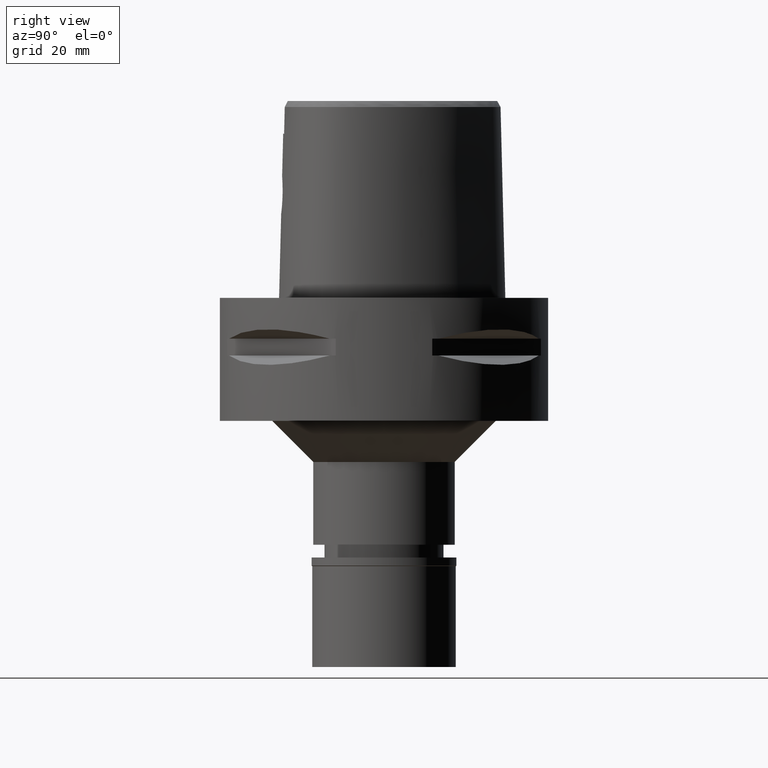
[diagram: clean part render]
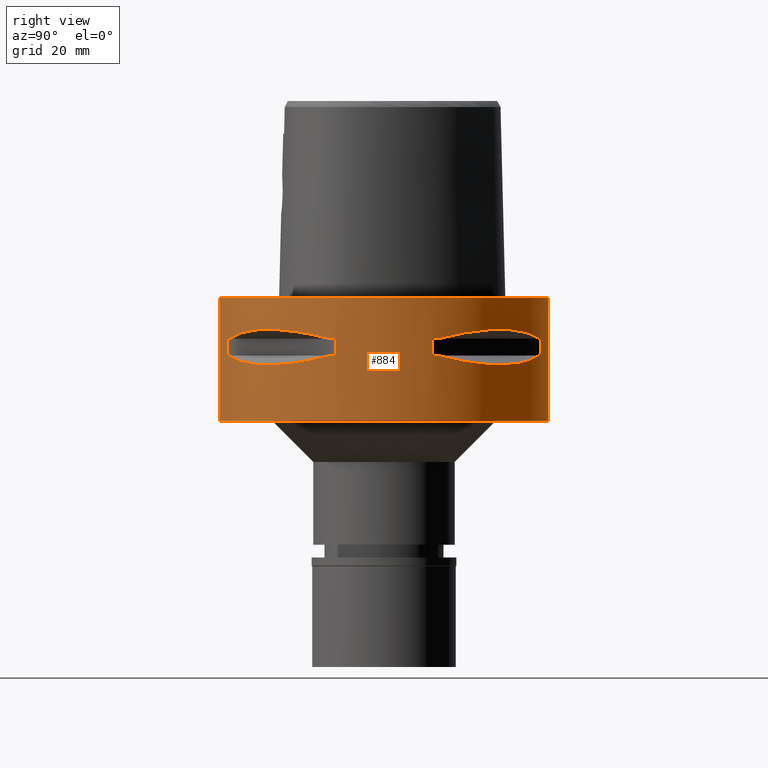
[diagram: same view with one face highlighted and labeled with its STEP entity id]
A machine part, right view. The second image highlights one B-rep face of the part: STEP entity #884.
In plain terms, the highlighted cylindrical surface (partial cylindrical patch) has radius 40 mm, axis along (0, 0, -1).
Its self-contained STEP definition (entity closure, byte-faithful):
#3 = CARTESIAN_POINT ( 'NONE',  ( 34.44518065740276569, 20.34261333234974245, -15.60313948593977074 ) ) ;
#21 = DIRECTION ( 'NONE',  ( 0.0000000000000000000, 0.0000000000000000000, 1.000000000000000000 ) ) ;
#29 = CARTESIAN_POINT ( 'NONE',  ( 30.36058330527161075, 26.20795918965221460, -7.669882118573493557 ) ) ;
#55 = EDGE_CURVE ( 'NONE', #2359, #2153, #1997, .T. ) ;
#78 = EDGE_CURVE ( 'NONE', #804, #5030, #3390, .T. ) ;
#102 = CARTESIAN_POINT ( 'NONE',  ( 23.95303639238279914, -32.16767032370825063, -16.14729882780506287 ) ) ;
#111 = CARTESIAN_POINT ( 'NONE',  ( 13.23717311056000057, -37.74622163926999718, -9.950000000002001244 ) ) ;
#113 = LINE ( 'NONE', #2866, #3397 ) ;
#140 = CARTESIAN_POINT ( 'NONE',  ( 30.36058330527161075, -26.20795918965218618, -7.669863843587146235 ) ) ;
#156 = CARTESIAN_POINT ( 'NONE',  ( 21.44484052678270913, -33.76566745675011560, -15.77571175125575031 ) ) ;
#172 = CARTESIAN_POINT ( 'NONE',  ( 38.23211342708000160, -11.76033600280999991, -14.05000000000000071 ) ) ;
#205 = VECTOR ( 'NONE', #3379, 1000.000000000000000 ) ;
#206 = CARTESIAN_POINT ( 'NONE',  ( 0.0000000000000000000, 1.273020347714000000E-14, -9.950000000000001066 ) ) ;
#209 = VECTOR ( 'NONE', #1115, 1000.000000000000000 ) ;
#229 = LINE ( 'NONE', #1390, #823 ) ;
#267 = VERTEX_POINT ( 'NONE', #3043 ) ;
#277 = CARTESIAN_POINT ( 'NONE',  ( 37.74622163926999718, -13.23717311056000057, -14.05000000000000071 ) ) ;
#305 = CARTESIAN_POINT ( 'NONE',  ( 32.16767032371209467, 23.95303639237203797, -16.14729882780224202 ) ) ;
#326 = CARTESIAN_POINT ( 'NONE',  ( 21.75464223249287699, 33.56701934068274795, -15.82109001420633732 ) ) ;
#333 = CARTESIAN_POINT ( 'NONE',  ( 38.23211342708000160, -11.76033600280999991, -9.950000000000001066 ) ) ;
#353 = CARTESIAN_POINT ( 'NONE',  ( 27.25214773984120598, 29.31642813391417590, -16.33014064577303515 ) ) ;
#369 = DIRECTION ( 'NONE',  ( 0.0000000000000000000, -1.000000000000000000, 0.0000000000000000000 ) ) ;
#398 = EDGE_LOOP ( 'NONE', ( #3161, #532, #684, #4283, #4489, #672, #1204, #1651 ) ) ;
#402 = CARTESIAN_POINT ( 'NONE',  ( 21.50560509406274434, 33.72697758561020720, -15.78472370821746118 ) ) ;
#419 = CYLINDRICAL_SURFACE ( 'NONE', #941, 40.00000000000000000 ) ;
#423 = CARTESIAN_POINT ( 'NONE',  ( 0.0000000000000000000, 1.273020347714000000E-14, -14.05000000000000071 ) ) ;
#498 = CARTESIAN_POINT ( 'NONE',  ( 18.83182902076451626, 35.41591128513827869, -8.619912199391256635 ) ) ;
#532 = ORIENTED_EDGE ( 'NONE', *, *, #1632, .F. ) ;
#536 = DIRECTION ( 'NONE',  ( 0.3309293277639132058, -0.9436555409818374596, 0.0000000000000000000 ) ) ;
#537 = DIRECTION ( 'NONE',  ( 0.0000000000000000000, 0.0000000000000000000, 1.000000000000000000 ) ) ;
#550 = CARTESIAN_POINT ( 'NONE',  ( 20.91613153241887701, -34.09685321779939926, -15.69507322892818557 ) ) ;
#556 = DIRECTION ( 'NONE',  ( 0.0000000000000000000, 0.0000000000000000000, -1.000000000000000000 ) ) ;
#569 = CARTESIAN_POINT ( 'NONE',  ( 21.40429668490248005, -33.79139713908606524, -15.76966389594713647 ) ) ;
#585 = CARTESIAN_POINT ( 'NONE',  ( 0.0000000000000000000, -40.00000000000000000, 1.065814103639999922E-14 ) ) ;
#668 = DIRECTION ( 'NONE',  ( 0.0000000000000000000, 0.0000000000000000000, 1.000000000000000000 ) ) ;
#672 = ORIENTED_EDGE ( 'NONE', *, *, #2668, .F. ) ;
#678 = B_SPLINE_CURVE_WITH_KNOTS ( 'NONE', 3,
 ( #3595, #3980, #1274, #905, #2531, #550, #1318, #3315, #569, #156, #3242, #102, #3214, #963, #2511, #4050, #4802, #4391, #1301, #1682, #2860, #4468, #883, #2120, #1346, #3264 ),
 .UNSPECIFIED., .F., .F.,
 ( 4, 1, 1, 1, 1, 1, 1, 2, 2, 2, 1, 1, 1, 1, 1, 1, 2, 2, 4 ),
 ( 0.0000000000000000000, 0.1250000000000018319, 0.1875000000000027478, 0.2187500000000032196, 0.2343750000000035805, 0.2421875000000038025, 0.2460937500000040523, 0.2480468750000043576, 0.2500000000000046629, 0.5000000000000000000, 0.6249999999999975575, 0.6874999999999964473, 0.7187499999999961142, 0.7343749999999960032, 0.7421874999999960032, 0.7460937499999957812, 0.7480468749999958922, 0.7499999999999958922, 1.000000000000000000 ),
 .UNSPECIFIED. ) ;
#684 = ORIENTED_EDGE ( 'NONE', *, *, #2269, .T. ) ;
#688 = CARTESIAN_POINT ( 'NONE',  ( 13.23717311056000057, 37.74622163926999718, -14.05000000000000071 ) ) ;
#705 = FACE_OUTER_BOUND ( 'NONE', #4308, .T. ) ;
#759 = CARTESIAN_POINT ( 'NONE',  ( 37.74622163926999718, 13.23717311056000057, -9.950000000002001244 ) ) ;
#804 = VERTEX_POINT ( 'NONE', #4975 ) ;
#823 = VECTOR ( 'NONE', #668, 1000.000000000000000 ) ;
#827 = CARTESIAN_POINT ( 'NONE',  ( 0.0000000000000000000, 1.273020347714000000E-14, -9.950000000000001066 ) ) ;
#828 = VERTEX_POINT ( 'NONE', #4603 ) ;
#883 = CARTESIAN_POINT ( 'NONE',  ( 33.72697758561029246, -21.50560509406250276, -15.78472370821739901 ) ) ;
#884 = ADVANCED_FACE ( 'NONE', ( #705, #2305, #2684 ), #419, .T. ) ;
#905 = CARTESIAN_POINT ( 'NONE',  ( 19.18269457492549179, -35.11589783530871500, -15.40342377740917001 ) ) ;
#910 = VERTEX_POINT ( 'NONE', #3085 ) ;
#911 = AXIS2_PLACEMENT_3D ( 'NONE', #5039, #1491, #1562 ) ;
#919 = CARTESIAN_POINT ( 'NONE',  ( 18.83173199174709467, -35.41596287855377767, -8.619939612211808821 ) ) ;
#921 = DIRECTION ( 'NONE',  ( 0.0000000000000000000, -1.000000000000000000, 0.0000000000000000000 ) ) ;
#922 = CARTESIAN_POINT ( 'NONE',  ( 11.76033600280999991, -38.23211342708000160, -14.05000000000000071 ) ) ;
#941 = AXIS2_PLACEMENT_3D ( 'NONE', #1500, #3516, #369 ) ;
#949 = CARTESIAN_POINT ( 'NONE',  ( 0.0000000000000000000, 1.273020347714000000E-14, -14.05000000000000071 ) ) ;
#963 = CARTESIAN_POINT ( 'NONE',  ( 29.31642813390815050, -27.25214773984377459, -16.33014064577162472 ) ) ;
#982 = CARTESIAN_POINT ( 'NONE',  ( 36.74073341982096252, 16.10435486228974611, -9.189966798081966814 ) ) ;
#993 = ORIENTED_EDGE ( 'NONE', *, *, #3386, .T. ) ;
#1008 = CARTESIAN_POINT ( 'NONE',  ( 0.0000000000000000000, -40.00000000000000000, 0.0000000000000000000 ) ) ;
#1014 = ORIENTED_EDGE ( 'NONE', *, *, #2906, .F. ) ;
#1060 = DIRECTION ( 'NONE',  ( 0.0000000000000000000, 0.0000000000000000000, 1.000000000000000000 ) ) ;
#1104 = CARTESIAN_POINT ( 'NONE',  ( 21.52391145898924663, 33.71529052282357952, -15.78742602700012831 ) ) ;
#1107 = DIRECTION ( 'NONE',  ( 0.0000000000000000000, 0.0000000000000000000, -1.000000000000000000 ) ) ;
#1115 = DIRECTION ( 'NONE',  ( 0.0000000000000000000, 0.0000000000000000000, -1.000000000000000000 ) ) ;
#1154 = CARTESIAN_POINT ( 'NONE',  ( 21.62017158009700069, 33.65365962422837498, -15.80156334789098160 ) ) ;
#1173 = EDGE_CURVE ( 'NONE', #828, #4433, #3803, .T. ) ;
#1200 = CIRCLE ( 'NONE', #1851, 39.99999999999999289 ) ;
#1204 = ORIENTED_EDGE ( 'NONE', *, *, #78, .T. ) ;
#1227 = EDGE_LOOP ( 'NONE', ( #1425, #4377, #2439, #2764, #3624, #3374, #2147, #3907 ) ) ;
#1249 = CARTESIAN_POINT ( 'NONE',  ( 26.20795918965211158, 30.36058330527170668, -7.669863843587146235 ) ) ;
#1274 = CARTESIAN_POINT ( 'NONE',  ( 16.81132763099230587, -36.35358138589664634, -14.94059947014864775 ) ) ;
#1301 = CARTESIAN_POINT ( 'NONE',  ( 33.56701934068144766, -21.75464223249341345, -15.82109001420603533 ) ) ;
#1318 = CARTESIAN_POINT ( 'NONE',  ( 21.20128033779640830, -33.91944728533381692, -15.73905907260415837 ) ) ;
#1346 = CARTESIAN_POINT ( 'NONE',  ( 36.72682052669194519, -16.14402792113480345, -14.82054974553614635 ) ) ;
#1362 = VERTEX_POINT ( 'NONE', #3004 ) ;
#1390 = CARTESIAN_POINT ( 'NONE',  ( 11.76033600280999991, 38.23211342708000160, -14.05000000000000071 ) ) ;
#1391 = DIRECTION ( 'NONE',  ( 0.9558028356769561196, 0.2940084000702865574, 0.0000000000000000000 ) ) ;
#1397 = VERTEX_POINT ( 'NONE', #4516 ) ;
#1425 = ORIENTED_EDGE ( 'NONE', *, *, #4392, .T. ) ;
#1488 = CARTESIAN_POINT ( 'NONE',  ( 13.23717311056000057, -37.74622163926999718, -9.950000000002001244 ) ) ;
#1491 = DIRECTION ( 'NONE',  ( 0.0000000000000000000, 0.0000000000000000000, 1.000000000000000000 ) ) ;
#1500 = CARTESIAN_POINT ( 'NONE',  ( 0.0000000000000000000, 1.273020347714000000E-14, 3.950000000000000178 ) ) ;
#1510 = CARTESIAN_POINT ( 'NONE',  ( 21.56243030661663695, 33.69065616467183588, -15.79309434609252705 ) ) ;
#1515 = AXIS2_PLACEMENT_3D ( 'NONE', #949, #2793, #536 ) ;
#1556 = CARTESIAN_POINT ( 'NONE',  ( 33.91944728533341191, 21.20128033779756294, -15.73905907260447101 ) ) ;
#1562 = DIRECTION ( 'NONE',  ( 0.3309293277639132058, 0.9436555409818374596, 0.0000000000000000000 ) ) ;
#1582 = CARTESIAN_POINT ( 'NONE',  ( 23.60097336453497618, 32.30995221951452834, -16.06165603927751917 ) ) ;
#1597 = VECTOR ( 'NONE', #1107, 1000.000000000000000 ) ;
#1616 = CARTESIAN_POINT ( 'NONE',  ( 11.76033600280999991, 38.23211342708000160, -9.950000000000001066 ) ) ;
#1629 = DIRECTION ( 'NONE',  ( 0.9558028356769561196, -0.2940084000702865574, 0.0000000000000000000 ) ) ;
#1632 = EDGE_CURVE ( 'NONE', #1397, #4433, #4131, .T. ) ;
#1649 = CIRCLE ( 'NONE', #2712, 39.99999999999997868 ) ;
#1651 = ORIENTED_EDGE ( 'NONE', *, *, #2772, .T. ) ;
#1682 = CARTESIAN_POINT ( 'NONE',  ( 33.65365962422774260, -21.62017158009728135, -15.80156334789082528 ) ) ;
#1715 = CARTESIAN_POINT ( 'NONE',  ( 37.74622163926999718, -13.23717311056000057, -9.950000000002001244 ) ) ;
#1758 = EDGE_CURVE ( 'NONE', #267, #2153, #3310, .T. ) ;
#1825 = LINE ( 'NONE', #1008, #209 ) ;
#1840 = B_SPLINE_CURVE_WITH_KNOTS ( 'NONE', 3,
 ( #1488, #1897, #919, #2469, #3199, #140, #4812, #2846, #3582, #1715 ),
 .UNSPECIFIED., .F., .F.,
 ( 4, 2, 2, 2, 4 ),
 ( 0.0000000000000000000, 0.2500000000000000000, 0.5000000000000000000, 0.7500000000000000000, 1.000000000000000000 ),
 .UNSPECIFIED. ) ;
#1851 = AXIS2_PLACEMENT_3D ( 'NONE', #423, #2786, #1629 ) ;
#1868 = CARTESIAN_POINT ( 'NONE',  ( 34.09685321779860345, 20.91613153242115075, -15.69507322892878953 ) ) ;
#1888 = VERTEX_POINT ( 'NONE', #4615 ) ;
#1897 = CARTESIAN_POINT ( 'NONE',  ( 16.10435486228985980, -36.74073341982089147, -9.189966798081966814 ) ) ;
#1918 = CARTESIAN_POINT ( 'NONE',  ( 37.74622163926999718, 13.23717311056000057, -14.05000000000000071 ) ) ;
#1938 = CARTESIAN_POINT ( 'NONE',  ( 0.0000000000000000000, -40.00000000000000000, -30.00000000000000000 ) ) ;
#1966 = CARTESIAN_POINT ( 'NONE',  ( 16.14402792110260521, 36.72682052670324993, -14.82054974552761095 ) ) ;
#1997 = CIRCLE ( 'NONE', #2335, 39.99999999999999289 ) ;
#2008 = DIRECTION ( 'NONE',  ( 0.9436555409818374596, -0.3309293277639132058, 0.0000000000000000000 ) ) ;
#2026 = VERTEX_POINT ( 'NONE', #1938 ) ;
#2057 = CIRCLE ( 'NONE', #3602, 40.00000000000000000 ) ;
#2117 = EDGE_CURVE ( 'NONE', #4690, #1888, #4694, .T. ) ;
#2120 = CARTESIAN_POINT ( 'NONE',  ( 35.39137327285502010, -18.89342208874845142, -15.39779115589221625 ) ) ;
#2147 = ORIENTED_EDGE ( 'NONE', *, *, #2385, .T. ) ;
#2153 = VERTEX_POINT ( 'NONE', #3596 ) ;
#2269 = EDGE_CURVE ( 'NONE', #1397, #4863, #1200, .T. ) ;
#2275 = CARTESIAN_POINT ( 'NONE',  ( 11.76033600280999991, 38.23211342708000160, -14.05000000000000071 ) ) ;
#2305 = FACE_BOUND ( 'NONE', #398, .T. ) ;
#2331 = CARTESIAN_POINT ( 'NONE',  ( 37.74622163926999718, 13.23717311056000057, -9.950000000002001244 ) ) ;
#2335 = AXIS2_PLACEMENT_3D ( 'NONE', #2835, #4339, #2455 ) ;
#2359 = VERTEX_POINT ( 'NONE', #2275 ) ;
#2385 = EDGE_CURVE ( 'NONE', #1362, #4690, #3569, .T. ) ;
#2439 = ORIENTED_EDGE ( 'NONE', *, *, #55, .T. ) ;
#2455 = DIRECTION ( 'NONE',  ( 0.2940084000702865574, 0.9558028356769561196, 0.0000000000000000000 ) ) ;
#2469 = CARTESIAN_POINT ( 'NONE',  ( 23.88355431037091137, -32.22577213857957901, -7.859897272571249260 ) ) ;
#2475 = EDGE_CURVE ( 'NONE', #2611, #2026, #1825, .T. ) ;
#2484 = DIRECTION ( 'NONE',  ( 0.2940084000702865574, -0.9558028356769561196, 0.0000000000000000000 ) ) ;
#2511 = CARTESIAN_POINT ( 'NONE',  ( 30.77249687753092289, -25.62819065487347814, -16.26160051742767365 ) ) ;
#2531 = CARTESIAN_POINT ( 'NONE',  ( 20.34261333234551472, -34.44518065740425783, -15.60313948593864275 ) ) ;
#2548 = CARTESIAN_POINT ( 'NONE',  ( 35.41596287855380609, 18.83173199174708046, -8.619939612211808821 ) ) ;
#2611 = VERTEX_POINT ( 'NONE', #585 ) ;
#2643 = CARTESIAN_POINT ( 'NONE',  ( 38.23211342708000160, 11.76033600280999991, -14.05000000000000071 ) ) ;
#2668 = EDGE_CURVE ( 'NONE', #804, #4526, #3530, .T. ) ;
#2669 = CARTESIAN_POINT ( 'NONE',  ( 18.89342208871625317, 35.39137327286631063, -15.39779115588368619 ) ) ;
#2684 = FACE_BOUND ( 'NONE', #1227, .T. ) ;
#2692 = CARTESIAN_POINT ( 'NONE',  ( 33.76566745675005166, 21.44484052678287256, -15.77571175125579828 ) ) ;
#2712 = AXIS2_PLACEMENT_3D ( 'NONE', #4867, #4485, #4159 ) ;
#2742 = CARTESIAN_POINT ( 'NONE',  ( 35.11589783530617126, 19.18269457493275354, -15.40342377741110091 ) ) ;
#2749 = DIRECTION ( 'NONE',  ( 0.0000000000000000000, 1.000000000000000000, 0.0000000000000000000 ) ) ;
#2764 = ORIENTED_EDGE ( 'NONE', *, *, #1758, .F. ) ;
#2772 = EDGE_CURVE ( 'NONE', #5030, #828, #1840, .T. ) ;
#2786 = DIRECTION ( 'NONE',  ( 0.0000000000000000000, 0.0000000000000000000, -1.000000000000000000 ) ) ;
#2793 = DIRECTION ( 'NONE',  ( 0.0000000000000000000, 0.0000000000000000000, -1.000000000000000000 ) ) ;
#2810 = CARTESIAN_POINT ( 'NONE',  ( 23.88364259920617272, 32.22570670470200582, -7.859869859750697962 ) ) ;
#2835 = CARTESIAN_POINT ( 'NONE',  ( 0.0000000000000000000, 1.273020347714000000E-14, -14.05000000000000071 ) ) ;
#2846 = CARTESIAN_POINT ( 'NONE',  ( 35.41591128513823605, -18.83182902076454468, -8.619912199391256635 ) ) ;
#2860 = CARTESIAN_POINT ( 'NONE',  ( 33.69065616467145929, -21.56243030661679327, -15.79309434609244001 ) ) ;
#2866 = CARTESIAN_POINT ( 'NONE',  ( 0.0000000000000000000, 40.00000000000000000, 0.0000000000000000000 ) ) ;
#2906 = EDGE_CURVE ( 'NONE', #4700, #3648, #113, .T. ) ;
#2922 = EDGE_CURVE ( 'NONE', #910, #4526, #3715, .T. ) ;
#2983 = AXIS2_PLACEMENT_3D ( 'NONE', #827, #3955, #2008 ) ;
#2990 = EDGE_CURVE ( 'NONE', #1362, #4873, #3250, .T. ) ;
#3004 = CARTESIAN_POINT ( 'NONE',  ( 38.23211342708000160, 11.76033600280999991, -9.950000000000001066 ) ) ;
#3043 = CARTESIAN_POINT ( 'NONE',  ( 37.74622163926999718, 13.23717311056000057, -14.05000000000000071 ) ) ;
#3072 = CARTESIAN_POINT ( 'NONE',  ( 11.76033600280999991, -38.23211342708000160, -9.950000000000001066 ) ) ;
#3085 = CARTESIAN_POINT ( 'NONE',  ( 13.23717311056000057, -37.74622163926999718, -14.05000000000000071 ) ) ;
#3116 = CARTESIAN_POINT ( 'NONE',  ( 0.0000000000000000000, 40.00000000000000000, 1.065814103639999922E-14 ) ) ;
#3118 = CARTESIAN_POINT ( 'NONE',  ( 33.79139713908593023, 21.40429668490282467, -15.76966389594722528 ) ) ;
#3147 = VECTOR ( 'NONE', #556, 1000.000000000000000 ) ;
#3161 = ORIENTED_EDGE ( 'NONE', *, *, #1173, .T. ) ;
#3189 = CARTESIAN_POINT ( 'NONE',  ( 16.10442380448735733, 36.74070924257181758, -9.189948522868267133 ) ) ;
#3199 = CARTESIAN_POINT ( 'NONE',  ( 26.20795918965211158, -30.36058330527167115, -7.669882118573493557 ) ) ;
#3214 = CARTESIAN_POINT ( 'NONE',  ( 26.21995747456629644, -30.34851826269509800, -16.33009976522055240 ) ) ;
#3242 = CARTESIAN_POINT ( 'NONE',  ( 21.46607685731536819, -33.75216276490051825, -15.77886817953059051 ) ) ;
#3250 = LINE ( 'NONE', #3556, #3147 ) ;
#3264 = CARTESIAN_POINT ( 'NONE',  ( 37.74622163926999718, -13.23717311056000057, -14.05000000000000071 ) ) ;
#3310 = B_SPLINE_CURVE_WITH_KNOTS ( 'NONE', 3,
 ( #1918, #4275, #3430, #2742, #3, #1868, #1556, #3916, #3118, #2692, #4658, #305, #3457, #353, #4635, #1582, #4961, #4584, #326, #1154, #1510, #1104, #402, #2669, #1966, #688 ),
 .UNSPECIFIED., .F., .F.,
 ( 4, 1, 1, 1, 1, 1, 1, 2, 2, 2, 1, 1, 1, 1, 1, 1, 2, 2, 4 ),
 ( 0.0000000000000000000, 0.1249999999999938660, 0.1874999999999906741, 0.2187499999999889255, 0.2343749999999879541, 0.2421874999999872879, 0.2460937499999869549, 0.2480468749999869271, 0.2499999999999869271, 0.4999999999999968914, 0.6250000000000018874, 0.6875000000000044409, 0.7187500000000057732, 0.7343750000000064393, 0.7421875000000067724, 0.7460937500000065503, 0.7480468750000062172, 0.7500000000000058842, 1.000000000000000000 ),
 .UNSPECIFIED. ) ;
#3315 = CARTESIAN_POINT ( 'NONE',  ( 21.34345216682037716, -33.82993376593525170, -15.76055673748744468 ) ) ;
#3374 = ORIENTED_EDGE ( 'NONE', *, *, #2990, .F. ) ;
#3379 = DIRECTION ( 'NONE',  ( 0.0000000000000000000, 0.0000000000000000000, 1.000000000000000000 ) ) ;
#3386 = EDGE_CURVE ( 'NONE', #2026, #3648, #2057, .T. ) ;
#3390 = CIRCLE ( 'NONE', #4757, 39.99999999999999289 ) ;
#3397 = VECTOR ( 'NONE', #4327, 1000.000000000000000 ) ;
#3422 = VERTEX_POINT ( 'NONE', #1616 ) ;
#3430 = CARTESIAN_POINT ( 'NONE',  ( 36.35358138589326416, 16.81132763100200123, -14.94059947015123058 ) ) ;
#3436 = CARTESIAN_POINT ( 'NONE',  ( 0.0000000000000000000, 1.273020347714000000E-14, 1.065814103639999922E-14 ) ) ;
#3457 = CARTESIAN_POINT ( 'NONE',  ( 30.34851826270024944, 26.21995747455423853, -16.33009976521772799 ) ) ;
#3509 = DIRECTION ( 'NONE',  ( 0.0000000000000000000, 0.0000000000000000000, -1.000000000000000000 ) ) ;
#3516 = DIRECTION ( 'NONE',  ( 0.0000000000000000000, 0.0000000000000000000, -1.000000000000000000 ) ) ;
#3530 = LINE ( 'NONE', #3072, #1597 ) ;
#3556 = CARTESIAN_POINT ( 'NONE',  ( 38.23211342708000160, 11.76033600280999991, -9.950000000000001066 ) ) ;
#3569 = CIRCLE ( 'NONE', #4839, 39.99999999999999289 ) ;
#3570 = EDGE_CURVE ( 'NONE', #910, #4863, #678, .T. ) ;
#3582 = CARTESIAN_POINT ( 'NONE',  ( 36.74070924257181758, -16.10442380448734312, -9.189948522868267133 ) ) ;
#3595 = CARTESIAN_POINT ( 'NONE',  ( 13.23717311056000057, -37.74622163926999718, -14.05000000000000071 ) ) ;
#3596 = CARTESIAN_POINT ( 'NONE',  ( 13.23717311056000057, 37.74622163926999718, -14.05000000000000071 ) ) ;
#3602 = AXIS2_PLACEMENT_3D ( 'NONE', #4403, #537, #921 ) ;
#3624 = ORIENTED_EDGE ( 'NONE', *, *, #4091, .T. ) ;
#3648 = VERTEX_POINT ( 'NONE', #3904 ) ;
#3692 = AXIS2_PLACEMENT_3D ( 'NONE', #3436, #3509, #2749 ) ;
#3715 = CIRCLE ( 'NONE', #1515, 39.99999999999997868 ) ;
#3770 = CIRCLE ( 'NONE', #3692, 40.00000000000000000 ) ;
#3803 = CIRCLE ( 'NONE', #2983, 39.99999999999997868 ) ;
#3856 = CIRCLE ( 'NONE', #911, 39.99999999999997868 ) ;
#3904 = CARTESIAN_POINT ( 'NONE',  ( 0.0000000000000000000, 40.00000000000000000, -30.00000000000000000 ) ) ;
#3907 = ORIENTED_EDGE ( 'NONE', *, *, #2117, .T. ) ;
#3916 = CARTESIAN_POINT ( 'NONE',  ( 33.82993376593505275, 21.34345216682098112, -15.76055673748761166 ) ) ;
#3955 = DIRECTION ( 'NONE',  ( 0.0000000000000000000, 0.0000000000000000000, 1.000000000000000000 ) ) ;
#3980 = CARTESIAN_POINT ( 'NONE',  ( 14.69039122917563844, -37.23659447745037454, -14.43521939500837981 ) ) ;
#4000 = CARTESIAN_POINT ( 'NONE',  ( 0.0000000000000000000, 1.273020347714000000E-14, -9.950000000000001066 ) ) ;
#4005 = CARTESIAN_POINT ( 'NONE',  ( 13.23717311056000057, 37.74622163926999718, -9.950000000002001244 ) ) ;
#4007 = EDGE_CURVE ( 'NONE', #2359, #3422, #229, .T. ) ;
#4050 = CARTESIAN_POINT ( 'NONE',  ( 32.30995221950663421, -23.60097336453835837, -16.06165603927566821 ) ) ;
#4091 = EDGE_CURVE ( 'NONE', #267, #4873, #1649, .T. ) ;
#4131 = LINE ( 'NONE', #172, #205 ) ;
#4159 = DIRECTION ( 'NONE',  ( 0.9436555409818374596, 0.3309293277639132058, 0.0000000000000000000 ) ) ;
#4219 = ORIENTED_EDGE ( 'NONE', *, *, #2475, .T. ) ;
#4275 = CARTESIAN_POINT ( 'NONE',  ( 37.23659447744844897, 14.69039122918117357, -14.43521939500984885 ) ) ;
#4283 = ORIENTED_EDGE ( 'NONE', *, *, #3570, .F. ) ;
#4308 = EDGE_LOOP ( 'NONE', ( #4950, #4219, #993, #1014 ) ) ;
#4327 = DIRECTION ( 'NONE',  ( 0.0000000000000000000, 0.0000000000000000000, -1.000000000000000000 ) ) ;
#4339 = DIRECTION ( 'NONE',  ( 0.0000000000000000000, 0.0000000000000000000, -1.000000000000000000 ) ) ;
#4347 = EDGE_CURVE ( 'NONE', #4700, #2611, #3770, .T. ) ;
#4369 = CARTESIAN_POINT ( 'NONE',  ( 32.22577213857955059, 23.88355431037101795, -7.859897272571249260 ) ) ;
#4377 = ORIENTED_EDGE ( 'NONE', *, *, #4007, .F. ) ;
#4391 = CARTESIAN_POINT ( 'NONE',  ( 33.39247868354526361, -22.02254759438564591, -15.85920599531236164 ) ) ;
#4392 = EDGE_CURVE ( 'NONE', #1888, #3422, #3856, .T. ) ;
#4403 = CARTESIAN_POINT ( 'NONE',  ( 0.0000000000000000000, 1.273020347714000000E-14, -30.00000000000000000 ) ) ;
#4433 = VERTEX_POINT ( 'NONE', #333 ) ;
#4468 = CARTESIAN_POINT ( 'NONE',  ( 33.71529052282339478, -21.52391145898932834, -15.78742602700008568 ) ) ;
#4485 = DIRECTION ( 'NONE',  ( 0.0000000000000000000, 0.0000000000000000000, -1.000000000000000000 ) ) ;
#4489 = ORIENTED_EDGE ( 'NONE', *, *, #2922, .T. ) ;
#4516 = CARTESIAN_POINT ( 'NONE',  ( 38.23211342708000160, -11.76033600280999991, -14.05000000000000071 ) ) ;
#4526 = VERTEX_POINT ( 'NONE', #922 ) ;
#4584 = CARTESIAN_POINT ( 'NONE',  ( 22.02254759438460141, 33.39247868354773630, -15.85920599531294783 ) ) ;
#4603 = CARTESIAN_POINT ( 'NONE',  ( 37.74622163926999718, -13.23717311056000057, -9.950000000002001244 ) ) ;
#4615 = CARTESIAN_POINT ( 'NONE',  ( 13.23717311056000057, 37.74622163926999718, -9.950000000002001244 ) ) ;
#4635 = CARTESIAN_POINT ( 'NONE',  ( 25.62819065486898396, 30.77249687754148866, -16.26160051743016055 ) ) ;
#4658 = CARTESIAN_POINT ( 'NONE',  ( 33.75216276490046852, 21.46607685731544990, -15.77886817953061005 ) ) ;
#4690 = VERTEX_POINT ( 'NONE', #759 ) ;
#4694 = B_SPLINE_CURVE_WITH_KNOTS ( 'NONE', 3,
 ( #2331, #982, #2548, #4369, #29, #1249, #2810, #498, #3189, #4005 ),
 .UNSPECIFIED., .F., .F.,
 ( 4, 2, 2, 2, 4 ),
 ( 0.0000000000000000000, 0.2500000000000000000, 0.5000000000000000000, 0.7500000000000000000, 1.000000000000000000 ),
 .UNSPECIFIED. ) ;
#4700 = VERTEX_POINT ( 'NONE', #3116 ) ;
#4757 = AXIS2_PLACEMENT_3D ( 'NONE', #4000, #21, #2484 ) ;
#4802 = CARTESIAN_POINT ( 'NONE',  ( 33.03835700909839090, -22.55421454657001235, -15.93168855142863904 ) ) ;
#4812 = CARTESIAN_POINT ( 'NONE',  ( 32.22570670470193477, -23.88364259920623667, -7.859869859750697962 ) ) ;
#4839 = AXIS2_PLACEMENT_3D ( 'NONE', #206, #1060, #1391 ) ;
#4863 = VERTEX_POINT ( 'NONE', #277 ) ;
#4867 = CARTESIAN_POINT ( 'NONE',  ( 0.0000000000000000000, 1.273020347714000000E-14, -14.05000000000000071 ) ) ;
#4873 = VERTEX_POINT ( 'NONE', #2643 ) ;
#4950 = ORIENTED_EDGE ( 'NONE', *, *, #4347, .T. ) ;
#4961 = CARTESIAN_POINT ( 'NONE',  ( 22.55421454656803704, 33.03835700910301654, -15.93168855142971374 ) ) ;
#4975 = CARTESIAN_POINT ( 'NONE',  ( 11.76033600280999991, -38.23211342708000160, -9.950000000000001066 ) ) ;
#5030 = VERTEX_POINT ( 'NONE', #111 ) ;
#5039 = CARTESIAN_POINT ( 'NONE',  ( 0.0000000000000000000, 1.273020347714000000E-14, -9.950000000000001066 ) ) ;